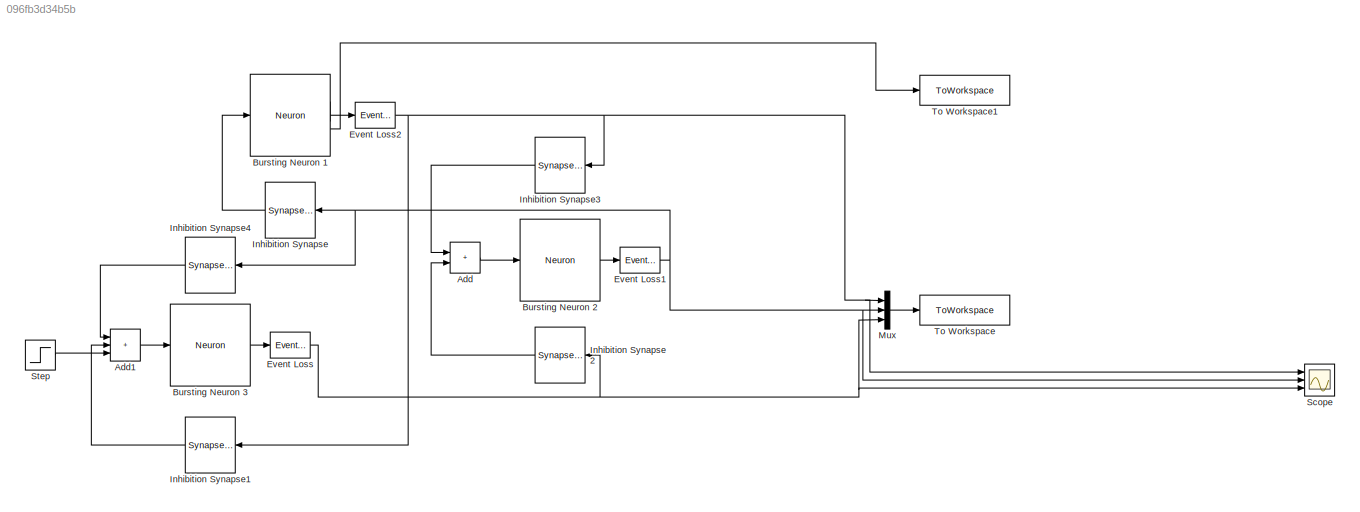
MODEL slx_096fb3d34b5b
KIND model
CONFIG AbsTol = auto
CONFIG EnableMultiTasking = off
CONFIG FixedStep = 1e-4
CONFIG MaxStep = auto
CONFIG MinStep = auto
CONFIG RelTol = 1e-3
CONFIG SampleTimeConstraint = Unconstrained
CONFIG SolverName = VariableStepAuto
CONFIG StartTime = 0.0
CONFIG StopTime = 30
WORKSPACE source: mxarray member
WORKSPACE a = 0.01
WORKSPACE gsyn_base = -1
WORKSPACE loss_prob = 0
BLOCK [Sum] Add
  IconShape = rectangular
  Ports = [2, 1]
BLOCK [Sum] Add1
  IconShape = rectangular
  Inputs = +++
  Ports = [3, 1]
BLOCK [Reference] Bursting Neuron 1  REF=neuromorphic_blocks/Neural Blocks/Neuron  (lib defined in slx_48105648e755)
  Ports = [1, 2]
  SourceBlock = neuromorphic_blocks/Neural Blocks/Neuron
  SourceProductName = Neuromorphic Toolbox
  SourceType = Neuron
BLOCK [Reference] Bursting Neuron 2  REF=neuromorphic_blocks/Neural Blocks/Neuron  (lib defined in slx_48105648e755)
  Ports = [1, 1]
  SourceBlock = neuromorphic_blocks/Neural Blocks/Neuron
  SourceProductName = Neuromorphic Toolbox
  SourceType = Neuron
BLOCK [Reference] Bursting Neuron 3  REF=neuromorphic_blocks/Neural Blocks/Neuron  (lib defined in slx_48105648e755)
  Ports = [1, 1]
  SourceBlock = neuromorphic_blocks/Neural Blocks/Neuron
  SourceProductName = Neuromorphic Toolbox
  SourceType = Neuron
BLOCK [Reference] Event Loss  REF=neuromorphic_blocks/Events Transmission Blocks/Event Loss  (lib defined in slx_48105648e755)
  Ports = [1, 1]
  SourceBlock = neuromorphic_blocks/Events Transmission Blocks/Event Loss
  SourceProductName = Neuromorphic Toolbox
  SourceType = Event Loss
BLOCK [Reference] Event Loss1  REF=neuromorphic_blocks/Events Transmission Blocks/Event Loss  (lib defined in slx_48105648e755)
  Ports = [1, 1]
  SourceBlock = neuromorphic_blocks/Events Transmission Blocks/Event Loss
  SourceProductName = Neuromorphic Toolbox
  SourceType = Event Loss
BLOCK [Reference] Event Loss2  REF=neuromorphic_blocks/Events Transmission Blocks/Event Loss  (lib defined in slx_48105648e755)
  Ports = [1, 1]
  SourceBlock = neuromorphic_blocks/Events Transmission Blocks/Event Loss
  SourceProductName = Neuromorphic Toolbox
  SourceType = Event Loss
BLOCK [Reference] Inhibition Synapse  REF=neuromorphic_blocks/Neural Blocks/Synapse with Facilitation  (lib defined in slx_48105648e755)
  NameLocation = top
  Ports = [1, 1]
  SourceBlock = neuromorphic_blocks/Neural Blocks/Synapse with Facilitation
  SourceProductName = Neuromorphic Toolbox
  SourceType = Synapse with Facilitation
BLOCK [Reference] Inhibition Synapse 2  REF=neuromorphic_blocks/Neural Blocks/Synapse with Facilitation  (lib defined in slx_48105648e755)
  NameLocation = top
  Ports = [1, 1]
  SourceBlock = neuromorphic_blocks/Neural Blocks/Synapse with Facilitation
  SourceProductName = Neuromorphic Toolbox
  SourceType = Synapse with Facilitation
BLOCK [Reference] Inhibition Synapse1  REF=neuromorphic_blocks/Neural Blocks/Synapse with Facilitation  (lib defined in slx_48105648e755)
  NameLocation = top
  Ports = [1, 1]
  SourceBlock = neuromorphic_blocks/Neural Blocks/Synapse with Facilitation
  SourceProductName = Neuromorphic Toolbox
  SourceType = Synapse with Facilitation
BLOCK [Reference] Inhibition Synapse3  REF=neuromorphic_blocks/Neural Blocks/Synapse with Facilitation  (lib defined in slx_48105648e755)
  NameLocation = top
  Ports = [1, 1]
  SourceBlock = neuromorphic_blocks/Neural Blocks/Synapse with Facilitation
  SourceProductName = Neuromorphic Toolbox
  SourceType = Synapse with Facilitation
BLOCK [Reference] Inhibition Synapse4  REF=neuromorphic_blocks/Neural Blocks/Synapse with Facilitation  (lib defined in slx_48105648e755)
  NameLocation = top
  Ports = [1, 1]
  SourceBlock = neuromorphic_blocks/Neural Blocks/Synapse with Facilitation
  SourceProductName = Neuromorphic Toolbox
  SourceType = Synapse with Facilitation
BLOCK [Mux] Mux
  DisplayOption = bar
  Inputs = 3
  Ports = [3, 1]
BLOCK [Scope] Scope
  Floating = off
  NumInputPorts = 3
  Ports = [3]
  ScopeSpecificationString = Simulink.scopes.TimeScopeBlockCfg('CurrentConfiguration', extmgr.ConfigurationSet(extmgr.Configuration('Core','General UI',true),extmgr.Configuration('Core','Source UI',true),extmgr.Configuration('Sources','WiredSimulink',true),extmgr.Configuration('Visuals','Time Domain',true,'SerializedDisplays',{struct('MinYLimReal','-0.125','MaxYLimReal','1.125','YLabelReal','','MinYLimMag','0.00000','MaxYLimM...<+2796ch>
BLOCK [Step] Step
  After = 0
  Before = -1
  SampleTime = 0
BLOCK [ToWorkspace] To Workspace
  FixptAsFi = on
  MaxDataPoints = inf
  Ports = [1]
  SampleTime = -1
  SaveFormat = Structure With Time
  VariableName = events
BLOCK [ToWorkspace] To Workspace1
  FixptAsFi = on
  MaxDataPoints = inf
  Ports = [1]
  SampleTime = -1
  SaveFormat = Structure With Time
  VariableName = voltage
LINE Add1:1 -> Bursting Neuron 3:1
LINE Add:1 -> Bursting Neuron 2:1
LINE Bursting Neuron 1:1 -> Event Loss2:1
LINE Bursting Neuron 1:2 -> To Workspace1:1
LINE Bursting Neuron 2:1 -> Event Loss1:1
LINE Bursting Neuron 3:1 -> Event Loss:1
NET Event Loss1:1 -> Inhibition Synapse4:1, Inhibition Synapse:1, Mux:2, Scope:2
NET Event Loss2:1 -> Inhibition Synapse1:1, Inhibition Synapse3:1, Mux:1, Scope:1
NET Event Loss:1 -> Inhibition Synapse 2:1, Mux:3, Scope:3
LINE Inhibition Synapse 2:1 -> Add:2
LINE Inhibition Synapse1:1 -> Add1:2
LINE Inhibition Synapse3:1 -> Add:1
LINE Inhibition Synapse4:1 -> Add1:1
LINE Inhibition Synapse:1 -> Bursting Neuron 1:1
LINE Mux:1 -> To Workspace:1
LINE Step:1 -> Add1:3
note: NET lines group one-source signal fan-out (src -> all destinations, sorted); 1:1 wires keep LINE
